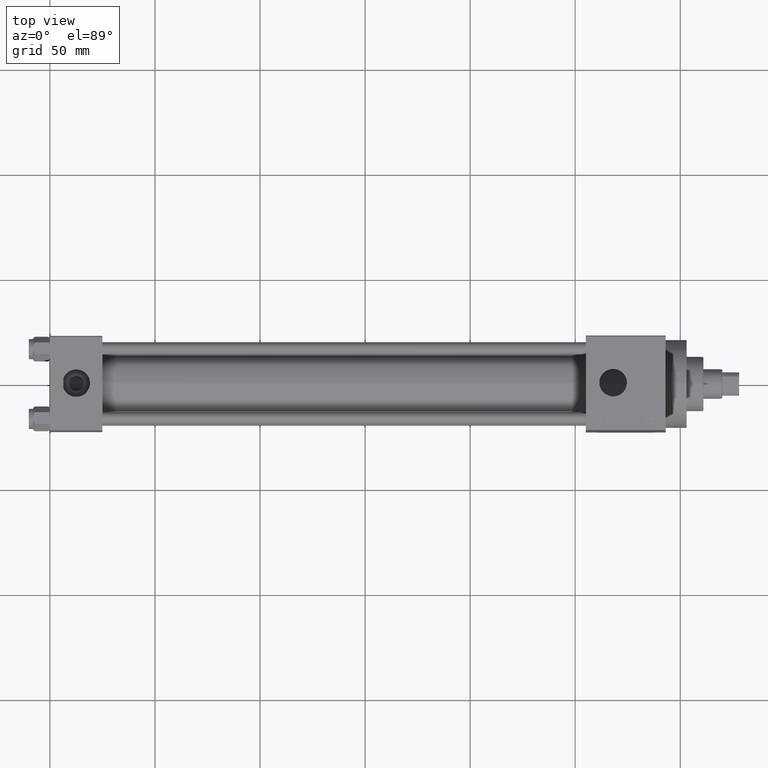
[diagram: clean part render]
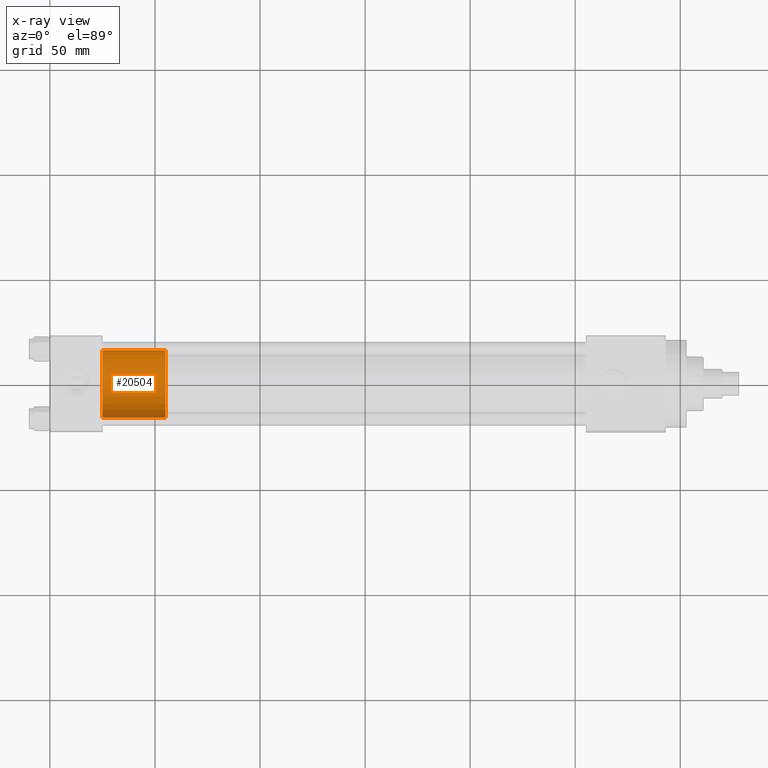
[diagram: x-ray — body ghosted, one internal face saturated and labeled with its STEP entity id]
A machine part, top view, then the same camera in x-ray: the body is ghosted and one INTERNAL B-rep face — a face not visible from any outside direction — is saturated and labeled: STEP entity #20504.
In plain terms, the highlighted cylindrical surface (edge-blend (fillet) strip) has radius 16 mm, axis along (-1, 0, 0).
Its self-contained STEP definition (entity closure, byte-faithful):
#2204 = CIRCLE ( 'NONE', #11307, 16.00000000000000000 ) ;
#6079 = LINE ( 'NONE', #16835, #27782 ) ;
#6196 = ORIENTED_EDGE ( 'NONE', *, *, #13398, .T. ) ;
#7147 = EDGE_CURVE ( 'NONE', #17681, #10798, #16787, .T. ) ;
#7702 = DIRECTION ( 'NONE',  ( 1.000000000000000000, 0.000000000000000000, 0.000000000000000000 ) ) ;
#9466 = VECTOR ( 'NONE', #13199, 1000.000000000000000 ) ;
#9553 = DIRECTION ( 'NONE',  ( 0.000000000000000000, 0.000000000000000000, 1.000000000000000000 ) ) ;
#10798 = VERTEX_POINT ( 'NONE', #24549 ) ;
#11214 = EDGE_LOOP ( 'NONE', ( #45822, #6196, #34666, #34674 ) ) ;
#11307 = AXIS2_PLACEMENT_3D ( 'NONE', #28385, #9553, #31500 ) ;
#13199 = DIRECTION ( 'NONE',  ( -0.000000000000000000, -0.000000000000000000, -1.000000000000000000 ) ) ;
#13398 = EDGE_CURVE ( 'NONE', #31862, #28179, #6079, .T. ) ;
#13709 = AXIS2_PLACEMENT_3D ( 'NONE', #14874, #25612, #7702 ) ;
#14874 = CARTESIAN_POINT ( 'NONE',  ( 0.000000000000000000, 0.000000000000000000, 0.000000000000000000 ) ) ;
#15041 = CARTESIAN_POINT ( 'NONE',  ( -16.00000000000000000, 0.000000000000000000, 30.00000000000000000 ) ) ;
#16787 = LINE ( 'NONE', #31322, #9466 ) ;
#16835 = CARTESIAN_POINT ( 'NONE',  ( 16.00000000000000000, 1.959434878635765131E-15, 30.00000000000000000 ) ) ;
#17497 = CIRCLE ( 'NONE', #13709, 16.00000000000000000 ) ;
#17681 = VERTEX_POINT ( 'NONE', #15041 ) ;
#18399 = CARTESIAN_POINT ( 'NONE',  ( 16.00000000000000000, 1.959434878635765131E-15, 30.00000000000000000 ) ) ;
#19950 = FACE_OUTER_BOUND ( 'NONE', #11214, .T. ) ;
#20504 = ADVANCED_FACE ( 'NONE', ( #19950 ), #45921, .T. ) ;
#20896 = DIRECTION ( 'NONE',  ( -1.000000000000000000, 0.000000000000000000, 0.000000000000000000 ) ) ;
#23847 = EDGE_CURVE ( 'NONE', #28179, #10798, #17497, .T. ) ;
#24466 = DIRECTION ( 'NONE',  ( -0.000000000000000000, -0.000000000000000000, -1.000000000000000000 ) ) ;
#24549 = CARTESIAN_POINT ( 'NONE',  ( -16.00000000000000000, 0.000000000000000000, 0.000000000000000000 ) ) ;
#25280 = EDGE_CURVE ( 'NONE', #31862, #17681, #2204, .T. ) ;
#25612 = DIRECTION ( 'NONE',  ( 0.000000000000000000, 0.000000000000000000, 1.000000000000000000 ) ) ;
#27782 = VECTOR ( 'NONE', #24466, 1000.000000000000000 ) ;
#28179 = VERTEX_POINT ( 'NONE', #45807 ) ;
#28385 = CARTESIAN_POINT ( 'NONE',  ( 0.000000000000000000, 0.000000000000000000, 30.00000000000000000 ) ) ;
#29533 = AXIS2_PLACEMENT_3D ( 'NONE', #31856, #42577, #20896 ) ;
#31322 = CARTESIAN_POINT ( 'NONE',  ( -16.00000000000000000, 0.000000000000000000, 30.00000000000000000 ) ) ;
#31500 = DIRECTION ( 'NONE',  ( 1.000000000000000000, 0.000000000000000000, 0.000000000000000000 ) ) ;
#31856 = CARTESIAN_POINT ( 'NONE',  ( 0.000000000000000000, 0.000000000000000000, 30.00000000000000000 ) ) ;
#31862 = VERTEX_POINT ( 'NONE', #18399 ) ;
#34666 = ORIENTED_EDGE ( 'NONE', *, *, #23847, .T. ) ;
#34674 = ORIENTED_EDGE ( 'NONE', *, *, #7147, .F. ) ;
#42577 = DIRECTION ( 'NONE',  ( -0.000000000000000000, -0.000000000000000000, -1.000000000000000000 ) ) ;
#45807 = CARTESIAN_POINT ( 'NONE',  ( 16.00000000000000000, 1.959434878635765131E-15, 0.000000000000000000 ) ) ;
#45822 = ORIENTED_EDGE ( 'NONE', *, *, #25280, .F. ) ;
#45921 = CYLINDRICAL_SURFACE ( 'NONE', #29533, 16.00000000000000000 ) ;